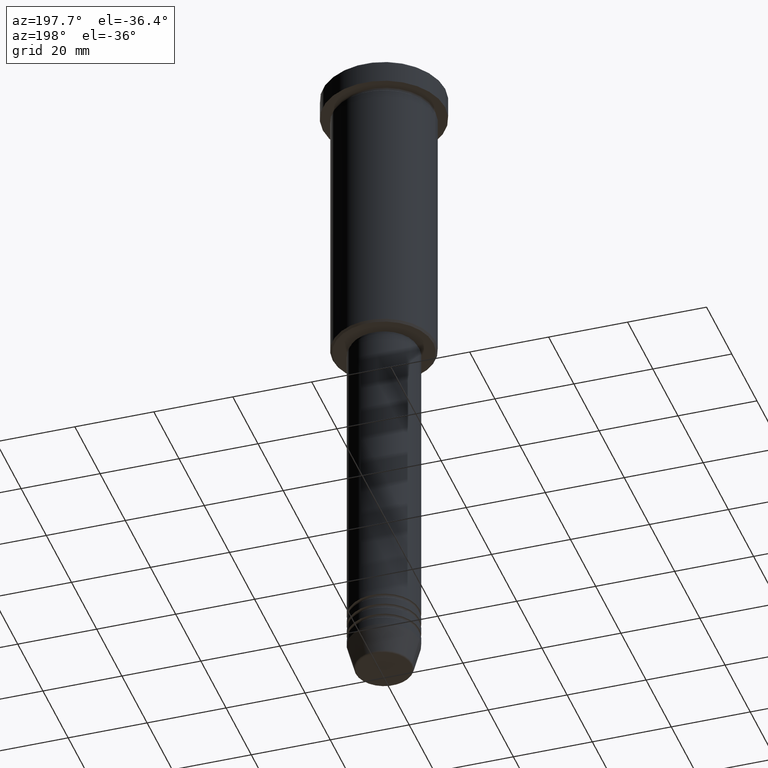
[diagram: clean part render]
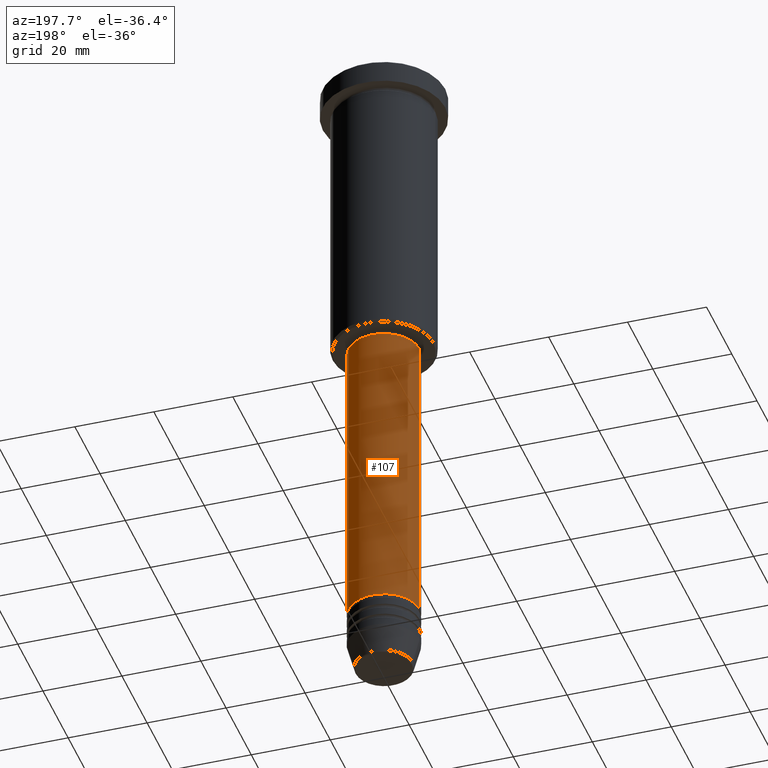
[diagram: same view with one face highlighted and labeled with its STEP entity id]
A machine part, auxiliary view. The second image highlights one B-rep face of the part: STEP entity #107.
In plain terms, the highlighted cylindrical surface (partial cylindrical patch) has radius 9 mm, axis along (-0, -0, 1).
Its self-contained STEP definition (entity closure, byte-faithful):
#33 = CARTESIAN_POINT ( 'NONE',  ( 0.000000000000000000, 0.000000000000000000, 0.000000000000000000 ) ) ;
#44 = CYLINDRICAL_SURFACE ( 'NONE', #523, 9.000000000000000000 ) ;
#81 = LINE ( 'NONE', #1066, #1140 ) ;
#107 = ADVANCED_FACE ( 'NONE', ( #818 ), #44, .T. ) ;
#139 = ORIENTED_EDGE ( 'NONE', *, *, #249, .T. ) ;
#244 = ORIENTED_EDGE ( 'NONE', *, *, #275, .F. ) ;
#249 = EDGE_CURVE ( 'NONE', #525, #670, #81, .T. ) ;
#275 = EDGE_CURVE ( 'NONE', #617, #303, #446, .T. ) ;
#303 = VERTEX_POINT ( 'NONE', #708 ) ;
#381 = CARTESIAN_POINT ( 'NONE',  ( -9.000000000000000000, 1.102182119232617714E-15, -154.9999999999999716 ) ) ;
#404 = AXIS2_PLACEMENT_3D ( 'NONE', #561, #658, #1032 ) ;
#413 = ORIENTED_EDGE ( 'NONE', *, *, #952, .F. ) ;
#446 = LINE ( 'NONE', #521, #1018 ) ;
#467 = DIRECTION ( 'NONE',  ( -0.000000000000000000, -0.000000000000000000, 1.000000000000000000 ) ) ;
#521 = CARTESIAN_POINT ( 'NONE',  ( 9.000000000000000000, 0.000000000000000000, 0.000000000000000000 ) ) ;
#523 = AXIS2_PLACEMENT_3D ( 'NONE', #33, #467, #640 ) ;
#525 = VERTEX_POINT ( 'NONE', #381 ) ;
#529 = DIRECTION ( 'NONE',  ( -0.000000000000000000, -0.000000000000000000, 1.000000000000000000 ) ) ;
#531 = CIRCLE ( 'NONE', #404, 9.000000000000000000 ) ;
#561 = CARTESIAN_POINT ( 'NONE',  ( 0.000000000000000000, 0.000000000000000000, -154.9999999999999716 ) ) ;
#617 = VERTEX_POINT ( 'NONE', #1112 ) ;
#640 = DIRECTION ( 'NONE',  ( 1.000000000000000000, 0.000000000000000000, 0.000000000000000000 ) ) ;
#658 = DIRECTION ( 'NONE',  ( -0.000000000000000000, -0.000000000000000000, 1.000000000000000000 ) ) ;
#664 = AXIS2_PLACEMENT_3D ( 'NONE', #892, #798, #779 ) ;
#670 = VERTEX_POINT ( 'NONE', #1131 ) ;
#708 = CARTESIAN_POINT ( 'NONE',  ( 9.000000000000000000, 0.000000000000000000, -77.00000000000001421 ) ) ;
#779 = DIRECTION ( 'NONE',  ( 1.000000000000000000, 0.000000000000000000, 0.000000000000000000 ) ) ;
#791 = ORIENTED_EDGE ( 'NONE', *, *, #901, .T. ) ;
#798 = DIRECTION ( 'NONE',  ( -0.000000000000000000, -0.000000000000000000, 1.000000000000000000 ) ) ;
#818 = FACE_OUTER_BOUND ( 'NONE', #1138, .T. ) ;
#892 = CARTESIAN_POINT ( 'NONE',  ( 0.000000000000000000, 0.000000000000000000, -77.00000000000001421 ) ) ;
#897 = CIRCLE ( 'NONE', #664, 9.000000000000000000 ) ;
#901 = EDGE_CURVE ( 'NONE', #617, #525, #531, .T. ) ;
#902 = DIRECTION ( 'NONE',  ( -0.000000000000000000, -0.000000000000000000, 1.000000000000000000 ) ) ;
#952 = EDGE_CURVE ( 'NONE', #303, #670, #897, .T. ) ;
#1018 = VECTOR ( 'NONE', #902, 1000.000000000000000 ) ;
#1032 = DIRECTION ( 'NONE',  ( 1.000000000000000000, 0.000000000000000000, 0.000000000000000000 ) ) ;
#1066 = CARTESIAN_POINT ( 'NONE',  ( -9.000000000000000000, 1.102182119232617714E-15, 0.000000000000000000 ) ) ;
#1112 = CARTESIAN_POINT ( 'NONE',  ( 9.000000000000000000, 0.000000000000000000, -154.9999999999999716 ) ) ;
#1131 = CARTESIAN_POINT ( 'NONE',  ( -9.000000000000000000, 1.102182119232617714E-15, -77.00000000000001421 ) ) ;
#1138 = EDGE_LOOP ( 'NONE', ( #791, #139, #413, #244 ) ) ;
#1140 = VECTOR ( 'NONE', #529, 1000.000000000000000 ) ;